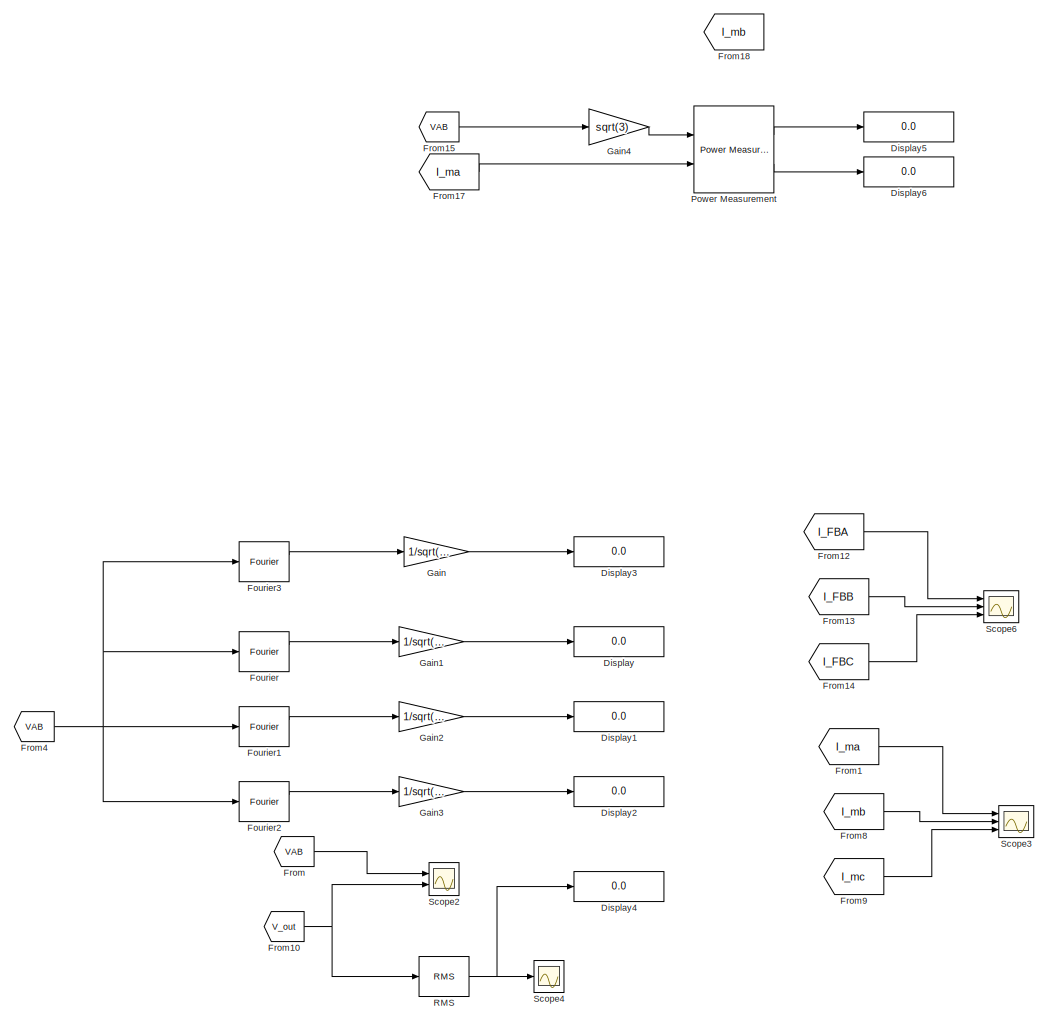
[diagram: root canvas - part 1/4, right side, full height]
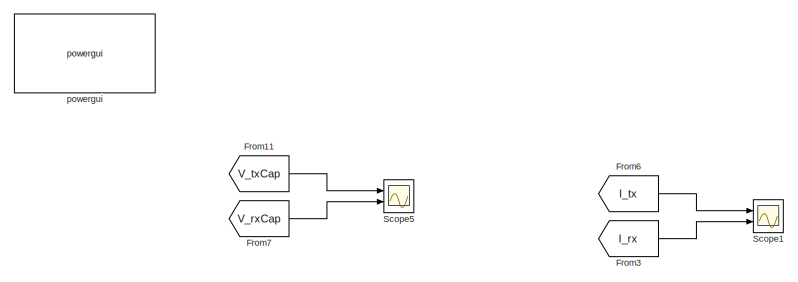
[diagram: root canvas - part 2/4, top center region]
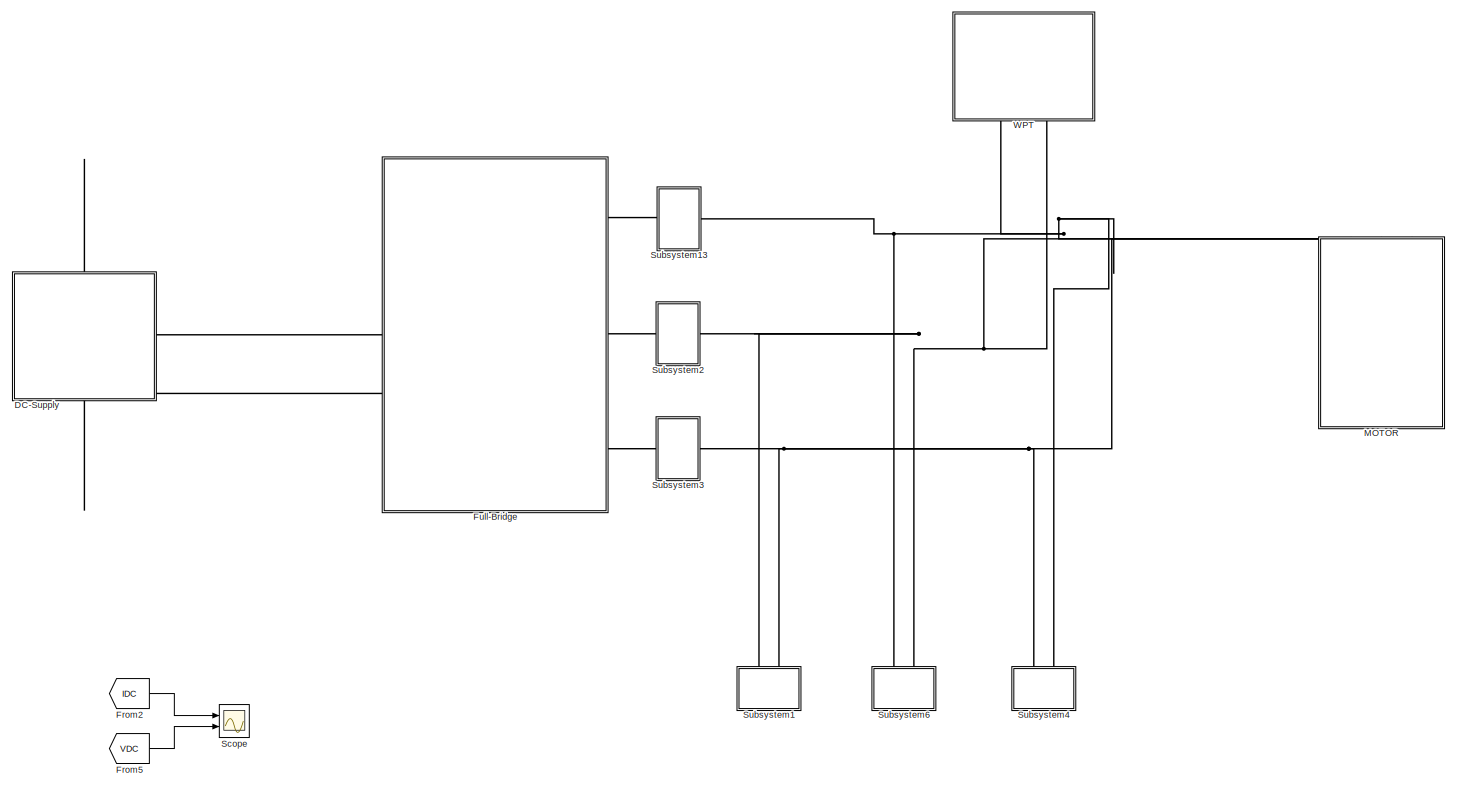
[diagram: root canvas - part 3/4, central region]
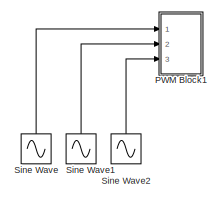
[diagram: root canvas - part 4/4, middle left region]
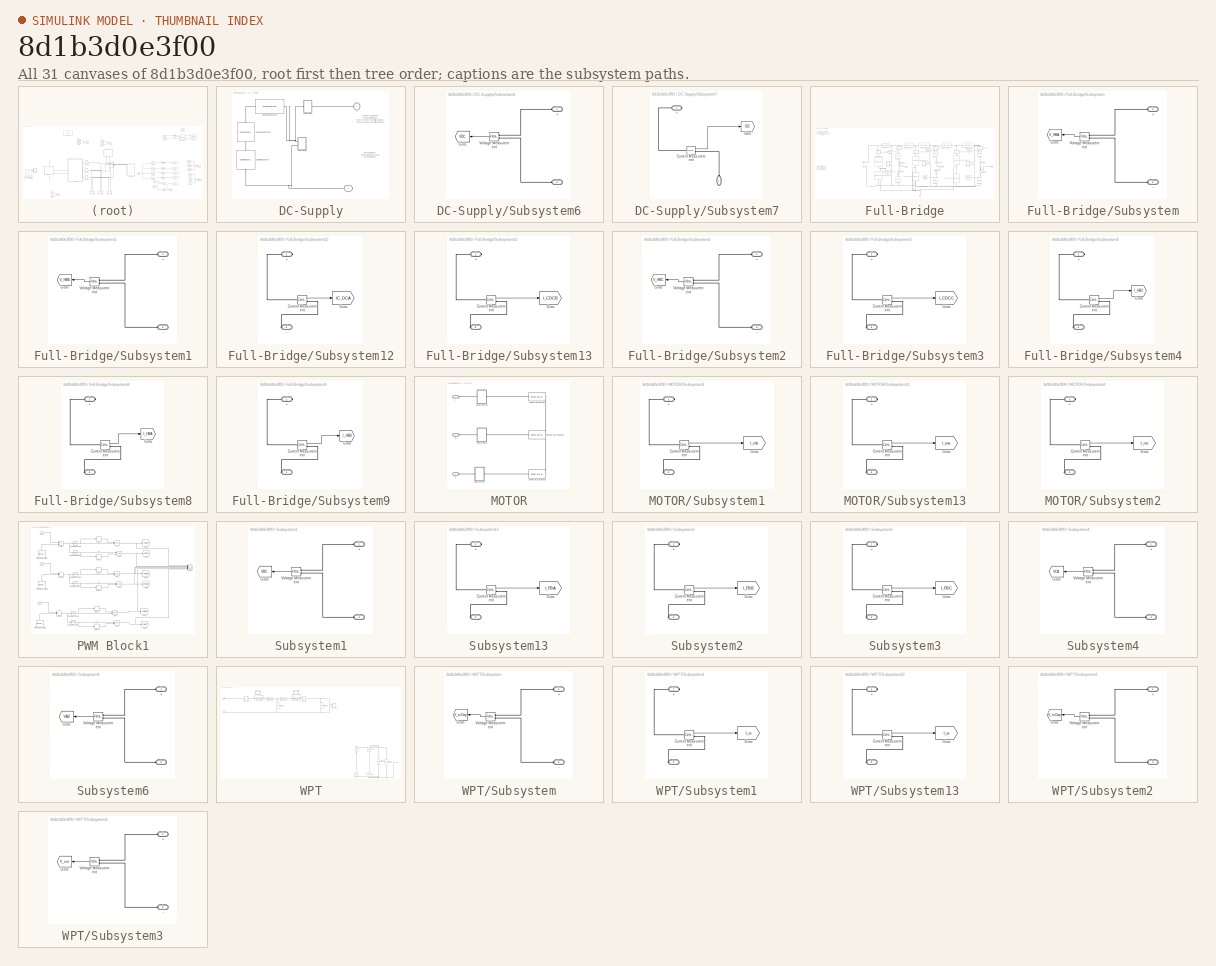
[diagram: thumbnail index - all 31 canvases of the model, root first then tree order]
MODEL slx_8d1b3d0e3f00
KIND model
CONFIG AbsTol = auto
CONFIG EnableMultiTasking = off
CONFIG FixedStep = SampleTime
CONFIG InitFcn = test_param\n\n\n
CONFIG MaxStep = auto
CONFIG MinStep = auto
CONFIG RelTol = 1e-3
CONFIG SampleTimeConstraint = Unconstrained
CONFIG SolverName = FixedStepDiscrete
CONFIG StartTime = 0.0
CONFIG StopTime = Tfinal
BLOCK [SubSystem] DC-Supply
  NameLocation = left
  Ports = [0, 0, 0, 0, 0, 1, 1]
  RequestExecContextInheritance = off
BLOCK [PMIOPort] DC-Supply/+
  Side = Left
BLOCK [PMIOPort] DC-Supply/-
  Port = 2
  Side = Right
BLOCK [Reference] DC-Supply/DC Voltage Source  REF=spsDCVoltageSourceLib/DC Voltage Source
  NameLocation = right
  Ports = [0, 0, 0, 0, 0, 1, 1]
  SourceBlock = spsDCVoltageSourceLib/DC Voltage Source
  SourceProductBaseCode = PS
  SourceType = DC Voltage Source
BLOCK [Reference] DC-Supply/Series RLC Branch1  REF=spsSeriesRLCBranchLib/Series RLC Branch
  NameLocation = top
  Ports = [0, 0, 0, 0, 0, 1, 1]
  SourceBlock = spsSeriesRLCBranchLib/Series RLC Branch
  SourceProductBaseCode = PS
  SourceType = Series RLC Branch
BLOCK [Reference] DC-Supply/Series RLC Branch5  REF=spsSeriesRLCBranchLib/Series RLC Branch
  NameLocation = left
  Ports = [0, 0, 0, 0, 0, 1, 1]
  SourceBlock = spsSeriesRLCBranchLib/Series RLC Branch
  SourceProductBaseCode = PS
  SourceType = Series RLC Branch
BLOCK [SubSystem] DC-Supply/Subsystem6
  Ports = [0, 0, 0, 0, 0, 2]
  RequestExecContextInheritance = off
BLOCK [PMIOPort] DC-Supply/Subsystem6/+
  Side = Left
BLOCK [PMIOPort] DC-Supply/Subsystem6/-
  Port = 2
  Side = Left
BLOCK [Goto] DC-Supply/Subsystem6/Goto
  GotoTag = VDC
  NameLocation = top
  TagVisibility = global
BLOCK [Reference] DC-Supply/Subsystem6/Voltage Measurement  REF=spsVoltageMeasurementLib/Voltage Measurement
  Ports = [0, 1, 0, 0, 0, 2]
  SourceBlock = spsVoltageMeasurementLib/Voltage Measurement
  SourceProductBaseCode = PS
  SourceType = Voltage Measurement
  UserDataPersistent = on
BLOCK [SubSystem] DC-Supply/Subsystem7
  NameLocation = top
  Ports = [0, 0, 0, 0, 0, 1, 1]
  RequestExecContextInheritance = off
BLOCK [PMIOPort] DC-Supply/Subsystem7/+
  Side = Right
BLOCK [PMIOPort] DC-Supply/Subsystem7/-
  NameLocation = left
  Port = 2
  Side = Left
BLOCK [Reference] DC-Supply/Subsystem7/Current Measurement  REF=spsCurrentMeasurementLib/Current Measurement
  Ports = [0, 1, 0, 0, 0, 1, 1]
  SourceBlock = spsCurrentMeasurementLib/Current Measurement
  SourceProductBaseCode = PS
  SourceType = Current Measurement
  UserDataPersistent = on
BLOCK [Goto] DC-Supply/Subsystem7/Goto
  GotoTag = IDC
  TagVisibility = global
BLOCK [Display] Display
  Decimation = 1
  Ports = [1]
BLOCK [Display] Display1
  Decimation = 1
  Ports = [1]
BLOCK [Display] Display2
  Decimation = 1
  Ports = [1]
BLOCK [Display] Display3
  Decimation = 1
  Ports = [1]
BLOCK [Display] Display4
  Decimation = 1
  Ports = [1]
BLOCK [Display] Display5
  Commented = on
  Decimation = 1
  Ports = [1]
BLOCK [Display] Display6
  Commented = on
  Decimation = 1
  Ports = [1]
BLOCK [Reference] Fourier  REF=spsFourierLib/Fourier
  Ports = [1, 2]
  SourceBlock = spsFourierLib/Fourier
  SourceProductBaseCode = PS
  SourceType = Fourier
BLOCK [Reference] Fourier1  REF=spsFourierLib/Fourier
  Ports = [1, 2]
  SourceBlock = spsFourierLib/Fourier
  SourceProductBaseCode = PS
  SourceType = Fourier
BLOCK [Reference] Fourier2  REF=spsFourierLib/Fourier
  Ports = [1, 2]
  SourceBlock = spsFourierLib/Fourier
  SourceProductBaseCode = PS
  SourceType = Fourier
BLOCK [Reference] Fourier3  REF=spsFourierLib/Fourier
  Ports = [1, 2]
  SourceBlock = spsFourierLib/Fourier
  SourceProductBaseCode = PS
  SourceType = Fourier
BLOCK [From] From
  GotoTag = VAB
  NameLocation = top
  TagVisibility = global
BLOCK [From] From1
  GotoTag = I_ma
  TagVisibility = global
BLOCK [From] From10
  GotoTag = V_out
  NameLocation = top
  TagVisibility = global
BLOCK [From] From11
  GotoTag = V_txCap
  TagVisibility = global
BLOCK [From] From12
  GotoTag = I_FBA
  TagVisibility = global
BLOCK [From] From13
  GotoTag = I_FBB
  TagVisibility = global
BLOCK [From] From14
  GotoTag = I_FBC
  TagVisibility = global
BLOCK [From] From15
  Commented = on
  GotoTag = VAB
  NameLocation = top
  TagVisibility = global
BLOCK [From] From17
  Commented = on
  GotoTag = I_ma
  TagVisibility = global
BLOCK [From] From18
  GotoTag = I_mb
  TagVisibility = global
BLOCK [From] From2
  GotoTag = IDC
  TagVisibility = global
BLOCK [From] From3
  GotoTag = I_rx
  TagVisibility = global
BLOCK [From] From4
  GotoTag = VAB
  NameLocation = top
  TagVisibility = global
BLOCK [From] From5
  GotoTag = VDC
  NameLocation = top
  TagVisibility = global
BLOCK [From] From6
  GotoTag = I_tx
  TagVisibility = global
BLOCK [From] From7
  GotoTag = V_rxCap
  TagVisibility = global
BLOCK [From] From8
  GotoTag = I_mb
  TagVisibility = global
BLOCK [From] From9
  GotoTag = I_mc
  TagVisibility = global
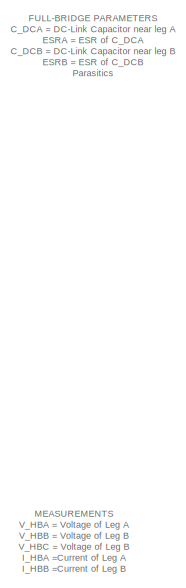
[diagram: Full-Bridge - part 1/4, top left region]
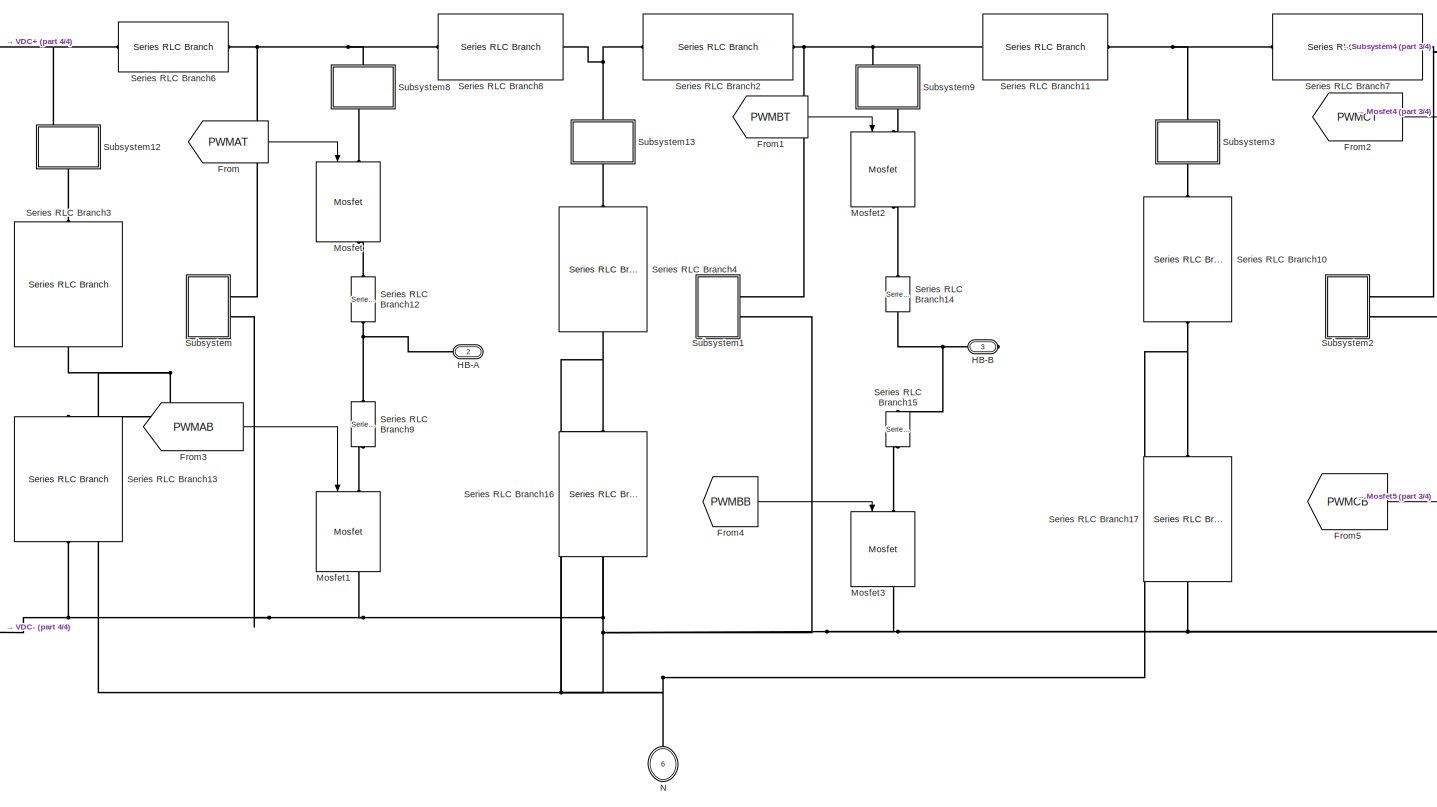
[diagram: Full-Bridge - part 2/4, center side, full height]
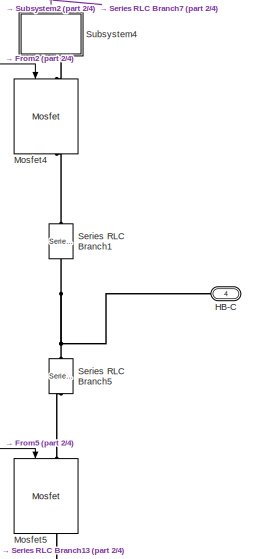
[diagram: Full-Bridge - part 3/4, middle right region]
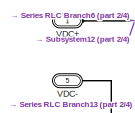
[diagram: Full-Bridge - part 4/4, middle left region]
BLOCK [SubSystem] Full-Bridge
  NameLocation = left
  PortSchema = {"entries":[{"content":{"sides":[{"content":{"connectorIds":[]},"type":"ConnectorPlacement.EquallySpacedRectSide","uuid":"92c2640b-bb56-47f8-9c41-2323b38839f8"},{"content":{"connectorIds":["RConn1","RConn2","RConn3"],"side":"RIGHT"},"type":"ConnectorPlacement.EquallySpacedRectSide","uuid":"0b5c90a1-e2e1-4478-84c9-834496a6568e"},{"content":{"connectorIds":["LConn1"],"side":"TOP"},"type":"ConnectorP...<+568ch>
  Ports = [0, 0, 0, 0, 0, 1, 5]
  RequestExecContextInheritance = off
BLOCK [From] Full-Bridge/From
  GotoTag = PWMAT
  TagVisibility = global
BLOCK [From] Full-Bridge/From1
  GotoTag = PWMBT
  TagVisibility = global
BLOCK [From] Full-Bridge/From2
  GotoTag = PWMCT
  TagVisibility = global
BLOCK [From] Full-Bridge/From3
  GotoTag = PWMAB
  TagVisibility = global
BLOCK [From] Full-Bridge/From4
  GotoTag = PWMBB
  TagVisibility = global
BLOCK [From] Full-Bridge/From5
  GotoTag = PWMCB
  TagVisibility = global
BLOCK [PMIOPort] Full-Bridge/HB-A
  Port = 2
  Side = Right
BLOCK [PMIOPort] Full-Bridge/HB-B
  Port = 3
  Side = Right
BLOCK [PMIOPort] Full-Bridge/HB-C
  Port = 4
  Side = Right
BLOCK [Reference] Full-Bridge/Mosfet  REF=spsMosfetLib/Mosfet
  NameLocation = left
  Ports = [1, 1, 0, 0, 0, 1, 1]
  SourceBlock = spsMosfetLib/Mosfet
  SourceProductBaseCode = PS
  SourceType = Mosfet
BLOCK [Reference] Full-Bridge/Mosfet1  REF=spsMosfetLib/Mosfet
  NameLocation = left
  Ports = [1, 1, 0, 0, 0, 1, 1]
  SourceBlock = spsMosfetLib/Mosfet
  SourceProductBaseCode = PS
  SourceType = Mosfet
BLOCK [Reference] Full-Bridge/Mosfet2  REF=spsMosfetLib/Mosfet
  NameLocation = left
  Ports = [1, 1, 0, 0, 0, 1, 1]
  SourceBlock = spsMosfetLib/Mosfet
  SourceProductBaseCode = PS
  SourceType = Mosfet
BLOCK [Reference] Full-Bridge/Mosfet3  REF=spsMosfetLib/Mosfet
  NameLocation = left
  Ports = [1, 1, 0, 0, 0, 1, 1]
  SourceBlock = spsMosfetLib/Mosfet
  SourceProductBaseCode = PS
  SourceType = Mosfet
BLOCK [Reference] Full-Bridge/Mosfet4  REF=spsMosfetLib/Mosfet
  NameLocation = left
  Ports = [1, 1, 0, 0, 0, 1, 1]
  SourceBlock = spsMosfetLib/Mosfet
  SourceProductBaseCode = PS
  SourceType = Mosfet
BLOCK [Reference] Full-Bridge/Mosfet5  REF=spsMosfetLib/Mosfet
  NameLocation = left
  Ports = [1, 1, 0, 0, 0, 1, 1]
  SourceBlock = spsMosfetLib/Mosfet
  SourceProductBaseCode = PS
  SourceType = Mosfet
BLOCK [PMIOPort] Full-Bridge/N
  NameLocation = left
  Port = 6
  Side = Right
BLOCK [Reference] Full-Bridge/Series RLC Branch1  REF=spsSeriesRLCBranchLib/Series RLC Branch
  NameLocation = right
  Ports = [0, 0, 0, 0, 0, 1, 1]
  SourceBlock = spsSeriesRLCBranchLib/Series RLC Branch
  SourceProductBaseCode = PS
  SourceType = Series RLC Branch
BLOCK [Reference] Full-Bridge/Series RLC Branch10  REF=spsSeriesRLCBranchLib/Series RLC Branch
  NameLocation = left
  Ports = [0, 0, 0, 0, 0, 1, 1]
  SourceBlock = spsSeriesRLCBranchLib/Series RLC Branch
  SourceProductBaseCode = PS
  SourceType = Series RLC Branch
BLOCK [Reference] Full-Bridge/Series RLC Branch11  REF=spsSeriesRLCBranchLib/Series RLC Branch
  NameLocation = top
  Ports = [0, 0, 0, 0, 0, 1, 1]
  SourceBlock = spsSeriesRLCBranchLib/Series RLC Branch
  SourceProductBaseCode = PS
  SourceType = Series RLC Branch
BLOCK [Reference] Full-Bridge/Series RLC Branch12  REF=spsSeriesRLCBranchLib/Series RLC Branch
  NameLocation = right
  Ports = [0, 0, 0, 0, 0, 1, 1]
  SourceBlock = spsSeriesRLCBranchLib/Series RLC Branch
  SourceProductBaseCode = PS
  SourceType = Series RLC Branch
BLOCK [Reference] Full-Bridge/Series RLC Branch13  REF=spsSeriesRLCBranchLib/Series RLC Branch
  NameLocation = left
  Ports = [0, 0, 0, 0, 0, 1, 1]
  SourceBlock = spsSeriesRLCBranchLib/Series RLC Branch
  SourceProductBaseCode = PS
  SourceType = Series RLC Branch
BLOCK [Reference] Full-Bridge/Series RLC Branch14  REF=spsSeriesRLCBranchLib/Series RLC Branch
  NameLocation = right
  Ports = [0, 0, 0, 0, 0, 1, 1]
  SourceBlock = spsSeriesRLCBranchLib/Series RLC Branch
  SourceProductBaseCode = PS
  SourceType = Series RLC Branch
BLOCK [Reference] Full-Bridge/Series RLC Branch15  REF=spsSeriesRLCBranchLib/Series RLC Branch
  NameLocation = right
  Ports = [0, 0, 0, 0, 0, 1, 1]
  SourceBlock = spsSeriesRLCBranchLib/Series RLC Branch
  SourceProductBaseCode = PS
  SourceType = Series RLC Branch
BLOCK [Reference] Full-Bridge/Series RLC Branch16  REF=spsSeriesRLCBranchLib/Series RLC Branch
  NameLocation = left
  Ports = [0, 0, 0, 0, 0, 1, 1]
  SourceBlock = spsSeriesRLCBranchLib/Series RLC Branch
  SourceProductBaseCode = PS
  SourceType = Series RLC Branch
BLOCK [Reference] Full-Bridge/Series RLC Branch17  REF=spsSeriesRLCBranchLib/Series RLC Branch
  NameLocation = left
  Ports = [0, 0, 0, 0, 0, 1, 1]
  SourceBlock = spsSeriesRLCBranchLib/Series RLC Branch
  SourceProductBaseCode = PS
  SourceType = Series RLC Branch
BLOCK [Reference] Full-Bridge/Series RLC Branch2  REF=spsSeriesRLCBranchLib/Series RLC Branch
  NameLocation = top
  Ports = [0, 0, 0, 0, 0, 1, 1]
  SourceBlock = spsSeriesRLCBranchLib/Series RLC Branch
  SourceProductBaseCode = PS
  SourceType = Series RLC Branch
BLOCK [Reference] Full-Bridge/Series RLC Branch3  REF=spsSeriesRLCBranchLib/Series RLC Branch
  NameLocation = left
  Ports = [0, 0, 0, 0, 0, 1, 1]
  SourceBlock = spsSeriesRLCBranchLib/Series RLC Branch
  SourceProductBaseCode = PS
  SourceType = Series RLC Branch
BLOCK [Reference] Full-Bridge/Series RLC Branch4  REF=spsSeriesRLCBranchLib/Series RLC Branch
  NameLocation = left
  Ports = [0, 0, 0, 0, 0, 1, 1]
  SourceBlock = spsSeriesRLCBranchLib/Series RLC Branch
  SourceProductBaseCode = PS
  SourceType = Series RLC Branch
BLOCK [Reference] Full-Bridge/Series RLC Branch5  REF=spsSeriesRLCBranchLib/Series RLC Branch
  NameLocation = right
  Ports = [0, 0, 0, 0, 0, 1, 1]
  SourceBlock = spsSeriesRLCBranchLib/Series RLC Branch
  SourceProductBaseCode = PS
  SourceType = Series RLC Branch
BLOCK [Reference] Full-Bridge/Series RLC Branch6  REF=spsSeriesRLCBranchLib/Series RLC Branch
  NameLocation = top
  Ports = [0, 0, 0, 0, 0, 1, 1]
  SourceBlock = spsSeriesRLCBranchLib/Series RLC Branch
  SourceProductBaseCode = PS
  SourceType = Series RLC Branch
BLOCK [Reference] Full-Bridge/Series RLC Branch7  REF=spsSeriesRLCBranchLib/Series RLC Branch
  NameLocation = top
  Ports = [0, 0, 0, 0, 0, 1, 1]
  SourceBlock = spsSeriesRLCBranchLib/Series RLC Branch
  SourceProductBaseCode = PS
  SourceType = Series RLC Branch
BLOCK [Reference] Full-Bridge/Series RLC Branch8  REF=spsSeriesRLCBranchLib/Series RLC Branch
  NameLocation = top
  Ports = [0, 0, 0, 0, 0, 1, 1]
  SourceBlock = spsSeriesRLCBranchLib/Series RLC Branch
  SourceProductBaseCode = PS
  SourceType = Series RLC Branch
BLOCK [Reference] Full-Bridge/Series RLC Branch9  REF=spsSeriesRLCBranchLib/Series RLC Branch
  NameLocation = right
  Ports = [0, 0, 0, 0, 0, 1, 1]
  SourceBlock = spsSeriesRLCBranchLib/Series RLC Branch
  SourceProductBaseCode = PS
  SourceType = Series RLC Branch
BLOCK [SubSystem] Full-Bridge/Subsystem
  Ports = [0, 0, 0, 0, 0, 2]
  RequestExecContextInheritance = off
BLOCK [PMIOPort] Full-Bridge/Subsystem/+
  Side = Left
BLOCK [PMIOPort] Full-Bridge/Subsystem/-
  Port = 2
  Side = Left
BLOCK [Goto] Full-Bridge/Subsystem/Goto
  GotoTag = V_HBA
  NameLocation = top
  TagVisibility = global
BLOCK [Reference] Full-Bridge/Subsystem/Voltage Measurement  REF=spsVoltageMeasurementLib/Voltage Measurement
  Ports = [0, 1, 0, 0, 0, 2]
  SourceBlock = spsVoltageMeasurementLib/Voltage Measurement
  SourceProductBaseCode = PS
  SourceType = Voltage Measurement
  UserDataPersistent = on
BLOCK [SubSystem] Full-Bridge/Subsystem1
  Ports = [0, 0, 0, 0, 0, 2]
  RequestExecContextInheritance = off
BLOCK [PMIOPort] Full-Bridge/Subsystem1/+
  Side = Left
BLOCK [PMIOPort] Full-Bridge/Subsystem1/-
  Port = 2
  Side = Left
BLOCK [Goto] Full-Bridge/Subsystem1/Goto
  GotoTag = V_HBB
  NameLocation = top
  TagVisibility = global
BLOCK [Reference] Full-Bridge/Subsystem1/Voltage Measurement  REF=spsVoltageMeasurementLib/Voltage Measurement
  Ports = [0, 1, 0, 0, 0, 2]
  SourceBlock = spsVoltageMeasurementLib/Voltage Measurement
  SourceProductBaseCode = PS
  SourceType = Voltage Measurement
  UserDataPersistent = on
BLOCK [SubSystem] Full-Bridge/Subsystem12
  NameLocation = right
  Ports = [0, 0, 0, 0, 0, 1, 1]
  RequestExecContextInheritance = off
BLOCK [PMIOPort] Full-Bridge/Subsystem12/+
  Side = Right
BLOCK [PMIOPort] Full-Bridge/Subsystem12/-
  Port = 2
  Side = Left
BLOCK [Reference] Full-Bridge/Subsystem12/Current Measurement  REF=spsCurrentMeasurementLib/Current Measurement
  Ports = [0, 1, 0, 0, 0, 1, 1]
  SourceBlock = spsCurrentMeasurementLib/Current Measurement
  SourceProductBaseCode = PS
  SourceType = Current Measurement
  UserDataPersistent = on
BLOCK [Goto] Full-Bridge/Subsystem12/Goto
  GotoTag = IC_DCA
  TagVisibility = global
BLOCK [SubSystem] Full-Bridge/Subsystem13
  NameLocation = right
  Ports = [0, 0, 0, 0, 0, 1, 1]
  RequestExecContextInheritance = off
BLOCK [PMIOPort] Full-Bridge/Subsystem13/+
  Side = Right
BLOCK [PMIOPort] Full-Bridge/Subsystem13/-
  Port = 2
  Side = Left
BLOCK [Reference] Full-Bridge/Subsystem13/Current Measurement  REF=spsCurrentMeasurementLib/Current Measurement
  Ports = [0, 1, 0, 0, 0, 1, 1]
  SourceBlock = spsCurrentMeasurementLib/Current Measurement
  SourceProductBaseCode = PS
  SourceType = Current Measurement
  UserDataPersistent = on
BLOCK [Goto] Full-Bridge/Subsystem13/Goto
  GotoTag = I_CDCB
  TagVisibility = global
BLOCK [SubSystem] Full-Bridge/Subsystem2
  Ports = [0, 0, 0, 0, 0, 2]
  RequestExecContextInheritance = off
BLOCK [PMIOPort] Full-Bridge/Subsystem2/+
  Side = Left
BLOCK [PMIOPort] Full-Bridge/Subsystem2/-
  Port = 2
  Side = Left
BLOCK [Goto] Full-Bridge/Subsystem2/Goto
  GotoTag = V_HBC
  NameLocation = top
  TagVisibility = global
BLOCK [Reference] Full-Bridge/Subsystem2/Voltage Measurement  REF=spsVoltageMeasurementLib/Voltage Measurement
  Ports = [0, 1, 0, 0, 0, 2]
  SourceBlock = spsVoltageMeasurementLib/Voltage Measurement
  SourceProductBaseCode = PS
  SourceType = Voltage Measurement
  UserDataPersistent = on
BLOCK [SubSystem] Full-Bridge/Subsystem3
  NameLocation = right
  Ports = [0, 0, 0, 0, 0, 1, 1]
  RequestExecContextInheritance = off
BLOCK [PMIOPort] Full-Bridge/Subsystem3/+
  Side = Right
BLOCK [PMIOPort] Full-Bridge/Subsystem3/-
  Port = 2
  Side = Left
BLOCK [Reference] Full-Bridge/Subsystem3/Current Measurement  REF=spsCurrentMeasurementLib/Current Measurement
  Ports = [0, 1, 0, 0, 0, 1, 1]
  SourceBlock = spsCurrentMeasurementLib/Current Measurement
  SourceProductBaseCode = PS
  SourceType = Current Measurement
  UserDataPersistent = on
BLOCK [Goto] Full-Bridge/Subsystem3/Goto
  GotoTag = I_CDCC
  TagVisibility = global
BLOCK [SubSystem] Full-Bridge/Subsystem4
  NameLocation = right
  Ports = [0, 0, 0, 0, 0, 1, 1]
  RequestExecContextInheritance = off
BLOCK [PMIOPort] Full-Bridge/Subsystem4/+
  Side = Right
BLOCK [PMIOPort] Full-Bridge/Subsystem4/-
  Port = 2
  Side = Left
BLOCK [Reference] Full-Bridge/Subsystem4/Current Measurement  REF=spsCurrentMeasurementLib/Current Measurement
  Ports = [0, 1, 0, 0, 0, 1, 1]
  SourceBlock = spsCurrentMeasurementLib/Current Measurement
  SourceProductBaseCode = PS
  SourceType = Current Measurement
  UserDataPersistent = on
BLOCK [Goto] Full-Bridge/Subsystem4/Goto
  GotoTag = I_HBC
  TagVisibility = global
BLOCK [SubSystem] Full-Bridge/Subsystem8
  NameLocation = right
  Ports = [0, 0, 0, 0, 0, 1, 1]
  RequestExecContextInheritance = off
BLOCK [PMIOPort] Full-Bridge/Subsystem8/+
  Side = Right
BLOCK [PMIOPort] Full-Bridge/Subsystem8/-
  Port = 2
  Side = Left
BLOCK [Reference] Full-Bridge/Subsystem8/Current Measurement  REF=spsCurrentMeasurementLib/Current Measurement
  Ports = [0, 1, 0, 0, 0, 1, 1]
  SourceBlock = spsCurrentMeasurementLib/Current Measurement
  SourceProductBaseCode = PS
  SourceType = Current Measurement
  UserDataPersistent = on
BLOCK [Goto] Full-Bridge/Subsystem8/Goto
  GotoTag = I_HBA
  TagVisibility = global
BLOCK [SubSystem] Full-Bridge/Subsystem9
  NameLocation = right
  Ports = [0, 0, 0, 0, 0, 1, 1]
  RequestExecContextInheritance = off
BLOCK [PMIOPort] Full-Bridge/Subsystem9/+
  Side = Right
BLOCK [PMIOPort] Full-Bridge/Subsystem9/-
  Port = 2
  Side = Left
BLOCK [Reference] Full-Bridge/Subsystem9/Current Measurement  REF=spsCurrentMeasurementLib/Current Measurement
  Ports = [0, 1, 0, 0, 0, 1, 1]
  SourceBlock = spsCurrentMeasurementLib/Current Measurement
  SourceProductBaseCode = PS
  SourceType = Current Measurement
  UserDataPersistent = on
BLOCK [Goto] Full-Bridge/Subsystem9/Goto
  GotoTag = I_HBB
  TagVisibility = global
BLOCK [PMIOPort] Full-Bridge/VDC+
  Side = Left
BLOCK [PMIOPort] Full-Bridge/VDC-
  Port = 5
  Side = Right
BLOCK [Gain] Gain
  Gain = 1/sqrt(2)
BLOCK [Gain] Gain1
  Gain = 1/sqrt(2)
BLOCK [Gain] Gain2
  Gain = 1/sqrt(2)
BLOCK [Gain] Gain3
  Gain = 1/sqrt(2)
BLOCK [Gain] Gain4
  Commented = on
  Gain = sqrt(3)
BLOCK [SubSystem] MOTOR
  PortSchema = {"entries":[{"content":{"sides":[{"content":{"connectorIds":[]},"type":"ConnectorPlacement.EquallySpacedRectSide","uuid":"27af0988-5d70-46f2-9f63-66e4679735d7"},{"content":{"connectorIds":[],"side":"RIGHT"},"type":"ConnectorPlacement.EquallySpacedRectSide","uuid":"9d673fb6-38db-4110-ad66-771dcf318fba"},{"content":{"connectorIds":["LConn1","LConn2","LConn3"],"side":"TOP"},"type":"ConnectorPlacement...<+399ch>
  Ports = [0, 0, 0, 0, 0, 3]
  RequestExecContextInheritance = off
BLOCK [PMIOPort] MOTOR/A
  Side = Left
BLOCK [PMIOPort] MOTOR/B
  Port = 2
  Side = Left
BLOCK [PMIOPort] MOTOR/C
  Port = 3
  Side = Left
BLOCK [Reference] MOTOR/Series RLC Branch  REF=spsSeriesRLCBranchLib/Series RLC Branch
  Ports = [0, 0, 0, 0, 0, 1, 1]
  SourceBlock = spsSeriesRLCBranchLib/Series RLC Branch
  SourceProductBaseCode = PS
  SourceType = Series RLC Branch
BLOCK [Reference] MOTOR/Series RLC Branch1  REF=spsSeriesRLCBranchLib/Series RLC Branch
  Ports = [0, 0, 0, 0, 0, 1, 1]
  SourceBlock = spsSeriesRLCBranchLib/Series RLC Branch
  SourceProductBaseCode = PS
  SourceType = Series RLC Branch
BLOCK [Reference] MOTOR/Series RLC Branch2  REF=spsSeriesRLCBranchLib/Series RLC Branch
  Ports = [0, 0, 0, 0, 0, 1, 1]
  SourceBlock = spsSeriesRLCBranchLib/Series RLC Branch
  SourceProductBaseCode = PS
  SourceType = Series RLC Branch
BLOCK [SubSystem] MOTOR/Subsystem1
  NameLocation = top
  Ports = [0, 0, 0, 0, 0, 1, 1]
  RequestExecContextInheritance = off
BLOCK [PMIOPort] MOTOR/Subsystem1/+
  Side = Right
BLOCK [PMIOPort] MOTOR/Subsystem1/-
  Port = 2
  Side = Left
BLOCK [Reference] MOTOR/Subsystem1/Current Measurement  REF=spsCurrentMeasurementLib/Current Measurement
  Ports = [0, 1, 0, 0, 0, 1, 1]
  SourceBlock = spsCurrentMeasurementLib/Current Measurement
  SourceProductBaseCode = PS
  SourceType = Current Measurement
  UserDataPersistent = on
BLOCK [Goto] MOTOR/Subsystem1/Goto
  GotoTag = I_mb
  TagVisibility = global
BLOCK [SubSystem] MOTOR/Subsystem13
  NameLocation = top
  Ports = [0, 0, 0, 0, 0, 1, 1]
  RequestExecContextInheritance = off
BLOCK [PMIOPort] MOTOR/Subsystem13/+
  Side = Right
BLOCK [PMIOPort] MOTOR/Subsystem13/-
  Port = 2
  Side = Left
BLOCK [Reference] MOTOR/Subsystem13/Current Measurement  REF=spsCurrentMeasurementLib/Current Measurement
  Ports = [0, 1, 0, 0, 0, 1, 1]
  SourceBlock = spsCurrentMeasurementLib/Current Measurement
  SourceProductBaseCode = PS
  SourceType = Current Measurement
  UserDataPersistent = on
BLOCK [Goto] MOTOR/Subsystem13/Goto
  GotoTag = I_ma
  TagVisibility = global
BLOCK [SubSystem] MOTOR/Subsystem2
  NameLocation = top
  Ports = [0, 0, 0, 0, 0, 1, 1]
  RequestExecContextInheritance = off
BLOCK [PMIOPort] MOTOR/Subsystem2/+
  Side = Right
BLOCK [PMIOPort] MOTOR/Subsystem2/-
  Port = 2
  Side = Left
BLOCK [Reference] MOTOR/Subsystem2/Current Measurement  REF=spsCurrentMeasurementLib/Current Measurement
  Ports = [0, 1, 0, 0, 0, 1, 1]
  SourceBlock = spsCurrentMeasurementLib/Current Measurement
  SourceProductBaseCode = PS
  SourceType = Current Measurement
  UserDataPersistent = on
BLOCK [Goto] MOTOR/Subsystem2/Goto
  GotoTag = I_mc
  TagVisibility = global
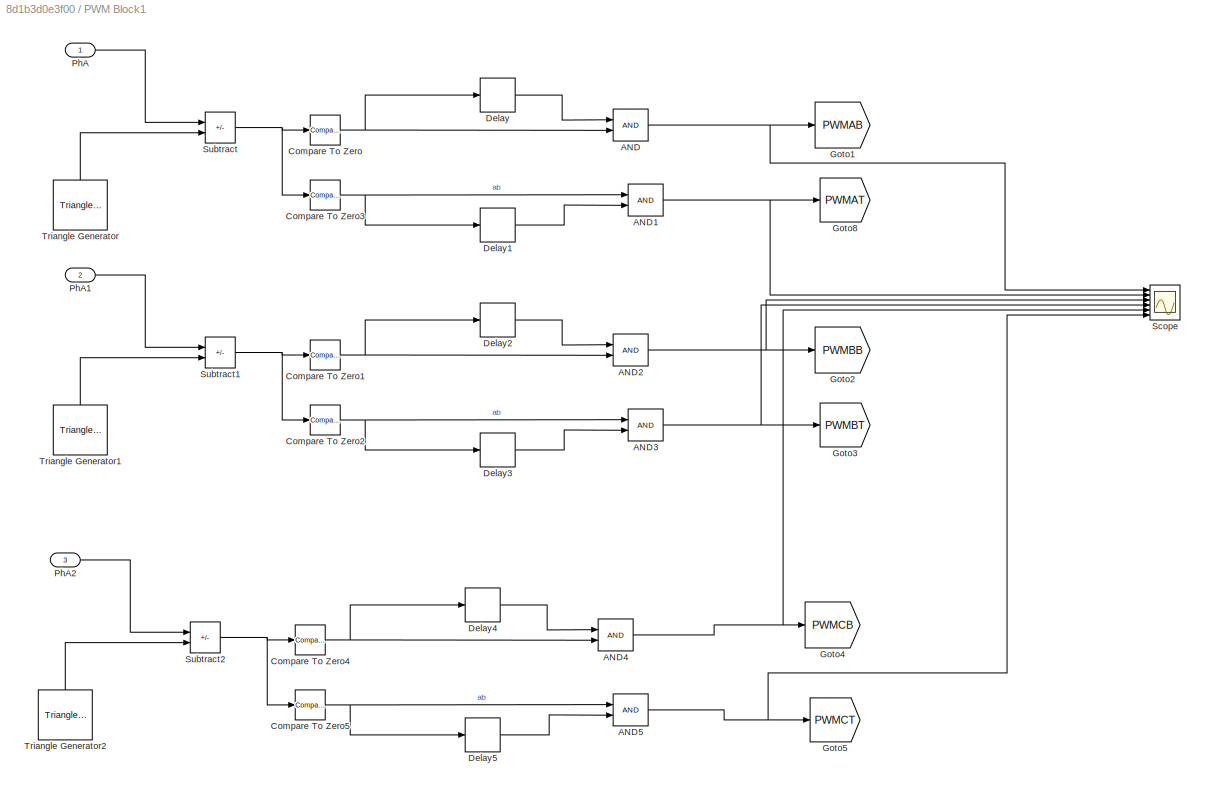
BLOCK [SubSystem] PWM Block1
  Ports = [3]
  RequestExecContextInheritance = off
BLOCK [Logic] PWM Block1/AND
  AllPortsSameDT = off
  IconShape = distinctive
  OutDataTypeStr = boolean
  Ports = [2, 1]
BLOCK [Logic] PWM Block1/AND1
  AllPortsSameDT = off
  IconShape = distinctive
  OutDataTypeStr = boolean
  Ports = [2, 1]
BLOCK [Logic] PWM Block1/AND2
  AllPortsSameDT = off
  IconShape = distinctive
  OutDataTypeStr = boolean
  Ports = [2, 1]
BLOCK [Logic] PWM Block1/AND3
  AllPortsSameDT = off
  IconShape = distinctive
  OutDataTypeStr = boolean
  Ports = [2, 1]
BLOCK [Logic] PWM Block1/AND4
  AllPortsSameDT = off
  IconShape = distinctive
  OutDataTypeStr = boolean
  Ports = [2, 1]
BLOCK [Logic] PWM Block1/AND5
  AllPortsSameDT = off
  IconShape = distinctive
  OutDataTypeStr = boolean
  Ports = [2, 1]
BLOCK [Reference] PWM Block1/Compare To Zero  REF=simulink/Logic and Bit
Operations/Compare
To Zero
  Ports = [1, 1]
  SourceBlock = simulink/Logic and Bit\nOperations/Compare\nTo Zero
  SourceProductBaseCode = SL
  SourceType = Compare To Zero
BLOCK [Reference] PWM Block1/Compare To Zero1  REF=simulink/Logic and Bit
Operations/Compare
To Zero
  Ports = [1, 1]
  SourceBlock = simulink/Logic and Bit\nOperations/Compare\nTo Zero
  SourceProductBaseCode = SL
  SourceType = Compare To Zero
BLOCK [Reference] PWM Block1/Compare To Zero2  REF=simulink/Logic and Bit
Operations/Compare
To Zero
  Ports = [1, 1]
  SourceBlock = simulink/Logic and Bit\nOperations/Compare\nTo Zero
  SourceProductBaseCode = SL
  SourceType = Compare To Zero
BLOCK [Reference] PWM Block1/Compare To Zero3  REF=simulink/Logic and Bit
Operations/Compare
To Zero
  Ports = [1, 1]
  SourceBlock = simulink/Logic and Bit\nOperations/Compare\nTo Zero
  SourceProductBaseCode = SL
  SourceType = Compare To Zero
BLOCK [Reference] PWM Block1/Compare To Zero4  REF=simulink/Logic and Bit
Operations/Compare
To Zero
  Ports = [1, 1]
  SourceBlock = simulink/Logic and Bit\nOperations/Compare\nTo Zero
  SourceProductBaseCode = SL
  SourceType = Compare To Zero
BLOCK [Reference] PWM Block1/Compare To Zero5  REF=simulink/Logic and Bit
Operations/Compare
To Zero
  Ports = [1, 1]
  SourceBlock = simulink/Logic and Bit\nOperations/Compare\nTo Zero
  SourceProductBaseCode = SL
  SourceType = Compare To Zero
BLOCK [Delay] PWM Block1/Delay
  InputPortMap = u0
  Ports = [1, 1]
BLOCK [Delay] PWM Block1/Delay1
  InputPortMap = u0
  Ports = [1, 1]
BLOCK [Delay] PWM Block1/Delay2
  InputPortMap = u0
  Ports = [1, 1]
BLOCK [Delay] PWM Block1/Delay3
  InputPortMap = u0
  Ports = [1, 1]
BLOCK [Delay] PWM Block1/Delay4
  InputPortMap = u0
  Ports = [1, 1]
BLOCK [Delay] PWM Block1/Delay5
  InputPortMap = u0
  Ports = [1, 1]
BLOCK [Goto] PWM Block1/Goto1
  GotoTag = PWMAB
  TagVisibility = global
BLOCK [Goto] PWM Block1/Goto2
  GotoTag = PWMBB
  TagVisibility = global
BLOCK [Goto] PWM Block1/Goto3
  GotoTag = PWMBT
  TagVisibility = global
BLOCK [Goto] PWM Block1/Goto4
  GotoTag = PWMCB
  TagVisibility = global
BLOCK [Goto] PWM Block1/Goto5
  GotoTag = PWMCT
  TagVisibility = global
BLOCK [Goto] PWM Block1/Goto8
  GotoTag = PWMAT
  TagVisibility = global
BLOCK [Inport] PWM Block1/PhA
BLOCK [Inport] PWM Block1/PhA1
  Port = 2
BLOCK [Inport] PWM Block1/PhA2
  Port = 3
BLOCK [Scope] PWM Block1/Scope
  Floating = off
  NumInputPorts = 6
  Ports = [6]
  ScopeSpecificationString = Simulink.scopes.TimeScopeBlockCfg('CurrentConfiguration', extmgr.ConfigurationSet(extmgr.Configuration('Core','General UI',true),extmgr.Configuration('Core','Source UI',true),extmgr.Configuration('Sources','WiredSimulink',true,'DataLoggingVariableName','ScopeData2'),extmgr.Configuration('Visuals','Time Domain',true,'SerializedDisplays',{struct('MinYLimReal','-0.00475','MaxYLimReal','1.08313','YLab...<+4806ch>
BLOCK [Sum] PWM Block1/Subtract
  IconShape = rectangular
  Inputs = +-
  Ports = [2, 1]
BLOCK [Sum] PWM Block1/Subtract1
  IconShape = rectangular
  Inputs = +-
  Ports = [2, 1]
BLOCK [Sum] PWM Block1/Subtract2
  IconShape = rectangular
  Inputs = +-
  Ports = [2, 1]
BLOCK [Reference] PWM Block1/Triangle Generator  REF=spsTriangleGeneratorLib/Triangle
Generator
  NameLocation = right
  Ports = [0, 1]
  SourceBlock = spsTriangleGeneratorLib/Triangle\nGenerator
  SourceProductBaseCode = PS
  SourceType = Triangle Generator
BLOCK [Reference] PWM Block1/Triangle Generator1  REF=spsTriangleGeneratorLib/Triangle
Generator
  NameLocation = right
  Ports = [0, 1]
  SourceBlock = spsTriangleGeneratorLib/Triangle\nGenerator
  SourceProductBaseCode = PS
  SourceType = Triangle Generator
BLOCK [Reference] PWM Block1/Triangle Generator2  REF=spsTriangleGeneratorLib/Triangle
Generator
  NameLocation = right
  Ports = [0, 1]
  SourceBlock = spsTriangleGeneratorLib/Triangle\nGenerator
  SourceProductBaseCode = PS
  SourceType = Triangle Generator
BLOCK [Reference] Power Measurement  REF=eePowerMeasurement/Power
Measurement
  Commented = on
  Ports = [2, 2]
  SourceBlock = eePowerMeasurement/Power\nMeasurement
  SourceProductBaseCode = PS
  SourceType = Power Measurement
BLOCK [Reference] RMS  REF=spsRMSLib/RMS
  Ports = [1, 1]
  SourceBlock = spsRMSLib/RMS
  SourceProductBaseCode = PS
  SourceType = RMS
BLOCK [Scope] Scope
  Floating = off
  NumInputPorts = 2
  Ports = [2]
  ScopeSpecificationString = Simulink.scopes.TimeScopeBlockCfg('CurrentConfiguration', extmgr.ConfigurationSet(extmgr.Configuration('Core','General UI',true),extmgr.Configuration('Core','Source UI',true),extmgr.Configuration('Sources','WiredSimulink',true,'DataLoggingVariableName','ScopeData1'),extmgr.Configuration('Visuals','Time Domain',true,'SerializedDisplays',{struct('MinYLimReal','-4.62241','MaxYLimReal','22.76795','YLa...<+1423ch>
BLOCK [Scope] Scope1
  Floating = off
  NumInputPorts = 2
  Ports = [2]
  ScopeSpecificationString = Simulink.scopes.TimeScopeBlockCfg('CurrentConfiguration', extmgr.ConfigurationSet(extmgr.Configuration('Core','General UI',true),extmgr.Configuration('Core','Source UI',true),extmgr.Configuration('Sources','WiredSimulink',true,'DataLoggingVariableName','ScopeData1'),extmgr.Configuration('Visuals','Time Domain',true,'SerializedDisplays',{struct('MinYLimReal','-1.58555','MaxYLimReal','2.11532','YLab...<+2111ch>
BLOCK [Scope] Scope2
  Floating = off
  NumInputPorts = 2
  Ports = [2]
  ScopeSpecificationString = Simulink.scopes.TimeScopeBlockCfg('CurrentConfiguration', extmgr.ConfigurationSet(extmgr.Configuration('Core','General UI',true),extmgr.Configuration('Core','Source UI',true),extmgr.Configuration('Sources','WiredSimulink',true,'DataLoggingVariableName','ScopeData1','DataLogging',true),extmgr.Configuration('Visuals','Time Domain',true,'SerializedDisplays',{struct('MinYLimReal','-251.37371','MaxYLim...<+2141ch>
BLOCK [Scope] Scope3
  Floating = off
  NumInputPorts = 3
  Ports = [3]
  ScopeSpecificationString = Simulink.scopes.TimeScopeBlockCfg('CurrentConfiguration', extmgr.ConfigurationSet(extmgr.Configuration('Core','General UI',true,'FigureColor',[1 1 1]),extmgr.Configuration('Core','Source UI',true),extmgr.Configuration('Sources','WiredSimulink',true,'DataLoggingVariableName','ScopeData1'),extmgr.Configuration('Visuals','Time Domain',true,'SerializedDisplays',{struct('MinYLimReal','-3.3558','MaxYLim...<+2012ch>
BLOCK [Scope] Scope4
  Floating = off
  NumInputPorts = 1
  Ports = [1]
  ScopeSpecificationString = Simulink.scopes.TimeScopeBlockCfg('CurrentConfiguration', extmgr.ConfigurationSet(extmgr.Configuration('Core','General UI',true),extmgr.Configuration('Core','Source UI',true),extmgr.Configuration('Sources','WiredSimulink',true,'DataLoggingVariableName','ScopeData3'),extmgr.Configuration('Visuals','Time Domain',true,'SerializedDisplays',{struct('MinYLimReal','-1.00000','MaxYLimReal','1.00000','YLab...<+1406ch>
BLOCK [Scope] Scope5
  Floating = off
  NumInputPorts = 2
  Ports = [2]
  ScopeSpecificationString = Simulink.scopes.TimeScopeBlockCfg('CurrentConfiguration', extmgr.ConfigurationSet(extmgr.Configuration('Core','General UI',true),extmgr.Configuration('Core','Source UI',true),extmgr.Configuration('Sources','WiredSimulink',true,'DataLoggingVariableName','ScopeData2'),extmgr.Configuration('Visuals','Time Domain',true,'SerializedDisplays',{struct('MinYLimReal','-224.75927','MaxYLimReal','225.09073','...<+2119ch>
BLOCK [Scope] Scope6
  Floating = off
  NumInputPorts = 3
  Ports = [3]
  ScopeSpecificationString = Simulink.scopes.TimeScopeBlockCfg('CurrentConfiguration', extmgr.ConfigurationSet(extmgr.Configuration('Core','General UI',true,'FigureColor',[1 1 1]),extmgr.Configuration('Core','Source UI',true),extmgr.Configuration('Sources','WiredSimulink',true,'DataLoggingVariableName','ScopeData3'),extmgr.Configuration('Visuals','Time Domain',true,'SerializedDisplays',{struct('MinYLimReal','-9.16797','MaxYLi...<+3502ch>
BLOCK [Sin] Sine Wave
  Amplitude = ma
  Frequency = f_motor*2*pi
  NameLocation = right
  Ports = [0, 1]
  SampleTime = 0
BLOCK [Sin] Sine Wave1
  Amplitude = ma
  Frequency = f_motor*2*pi
  NameLocation = right
  Phase = -2*pi/3
  Ports = [0, 1]
  SampleTime = 0
BLOCK [Sin] Sine Wave2
  Amplitude = ma
  Frequency = f_motor*2*pi
  NameLocation = right
  Phase = 2*pi/3
  Ports = [0, 1]
  SampleTime = 0
BLOCK [SubSystem] Subsystem1
  NameLocation = left
  Ports = [0, 0, 0, 0, 0, 2]
  RequestExecContextInheritance = off
BLOCK [PMIOPort] Subsystem1/+
  Side = Left
BLOCK [PMIOPort] Subsystem1/-
  Port = 2
  Side = Left
BLOCK [Goto] Subsystem1/Goto
  GotoTag = VBC
  NameLocation = top
  TagVisibility = global
BLOCK [Reference] Subsystem1/Voltage Measurement  REF=spsVoltageMeasurementLib/Voltage Measurement
  Ports = [0, 1, 0, 0, 0, 2]
  SourceBlock = spsVoltageMeasurementLib/Voltage Measurement
  SourceProductBaseCode = PS
  SourceType = Voltage Measurement
  UserDataPersistent = on
BLOCK [SubSystem] Subsystem13
  NameLocation = top
  Ports = [0, 0, 0, 0, 0, 1, 1]
  RequestExecContextInheritance = off
BLOCK [PMIOPort] Subsystem13/+
  Side = Right
BLOCK [PMIOPort] Subsystem13/-
  Port = 2
  Side = Left
BLOCK [Reference] Subsystem13/Current Measurement  REF=spsCurrentMeasurementLib/Current Measurement
  Ports = [0, 1, 0, 0, 0, 1, 1]
  SourceBlock = spsCurrentMeasurementLib/Current Measurement
  SourceProductBaseCode = PS
  SourceType = Current Measurement
  UserDataPersistent = on
BLOCK [Goto] Subsystem13/Goto
  GotoTag = I_FBA
  TagVisibility = global
BLOCK [SubSystem] Subsystem2
  NameLocation = top
  Ports = [0, 0, 0, 0, 0, 1, 1]
  RequestExecContextInheritance = off
BLOCK [PMIOPort] Subsystem2/+
  Side = Right
BLOCK [PMIOPort] Subsystem2/-
  Port = 2
  Side = Left
BLOCK [Reference] Subsystem2/Current Measurement  REF=spsCurrentMeasurementLib/Current Measurement
  Ports = [0, 1, 0, 0, 0, 1, 1]
  SourceBlock = spsCurrentMeasurementLib/Current Measurement
  SourceProductBaseCode = PS
  SourceType = Current Measurement
  UserDataPersistent = on
BLOCK [Goto] Subsystem2/Goto
  GotoTag = I_FBB
  TagVisibility = global
BLOCK [SubSystem] Subsystem3
  NameLocation = top
  Ports = [0, 0, 0, 0, 0, 1, 1]
  RequestExecContextInheritance = off
BLOCK [PMIOPort] Subsystem3/+
  Side = Right
BLOCK [PMIOPort] Subsystem3/-
  Port = 2
  Side = Left
BLOCK [Reference] Subsystem3/Current Measurement  REF=spsCurrentMeasurementLib/Current Measurement
  Ports = [0, 1, 0, 0, 0, 1, 1]
  SourceBlock = spsCurrentMeasurementLib/Current Measurement
  SourceProductBaseCode = PS
  SourceType = Current Measurement
  UserDataPersistent = on
BLOCK [Goto] Subsystem3/Goto
  GotoTag = I_FBC
  TagVisibility = global
BLOCK [SubSystem] Subsystem4
  NameLocation = left
  Ports = [0, 0, 0, 0, 0, 2]
  RequestExecContextInheritance = off
BLOCK [PMIOPort] Subsystem4/+
  Side = Left
BLOCK [PMIOPort] Subsystem4/-
  Port = 2
  Side = Left
BLOCK [Goto] Subsystem4/Goto
  GotoTag = VCA
  NameLocation = top
  TagVisibility = global
BLOCK [Reference] Subsystem4/Voltage Measurement  REF=spsVoltageMeasurementLib/Voltage Measurement
  Ports = [0, 1, 0, 0, 0, 2]
  SourceBlock = spsVoltageMeasurementLib/Voltage Measurement
  SourceProductBaseCode = PS
  SourceType = Voltage Measurement
  UserDataPersistent = on
BLOCK [SubSystem] Subsystem6
  NameLocation = left
  Ports = [0, 0, 0, 0, 0, 2]
  RequestExecContextInheritance = off
BLOCK [PMIOPort] Subsystem6/+
  Side = Left
BLOCK [PMIOPort] Subsystem6/-
  Port = 2
  Side = Left
BLOCK [Goto] Subsystem6/Goto
  GotoTag = VAB
  NameLocation = top
  TagVisibility = global
BLOCK [Reference] Subsystem6/Voltage Measurement  REF=spsVoltageMeasurementLib/Voltage Measurement
  Ports = [0, 1, 0, 0, 0, 2]
  SourceBlock = spsVoltageMeasurementLib/Voltage Measurement
  SourceProductBaseCode = PS
  SourceType = Voltage Measurement
  UserDataPersistent = on
BLOCK [SubSystem] WPT
  NameLocation = right
  Ports = [0, 0, 0, 0, 0, 2]
  RequestExecContextInheritance = off
BLOCK [PMIOPort] WPT/+
  Side = Left
BLOCK [PMIOPort] WPT/-
  Port = 2
  Side = Left
BLOCK [Reference] WPT/Diode  REF=spsDiodeLib/Diode
  Commented = on
  NameLocation = right
  Ports = [0, 1, 0, 0, 0, 1, 1]
  SourceBlock = spsDiodeLib/Diode
  SourceProductBaseCode = PS
  SourceType = Diode
BLOCK [Reference] WPT/Diode1  REF=spsDiodeLib/Diode
  Commented = on
  NameLocation = right
  Ports = [0, 1, 0, 0, 0, 1, 1]
  SourceBlock = spsDiodeLib/Diode
  SourceProductBaseCode = PS
  SourceType = Diode
BLOCK [Reference] WPT/Diode2  REF=spsDiodeLib/Diode
  Commented = on
  NameLocation = right
  Ports = [0, 1, 0, 0, 0, 1, 1]
  SourceBlock = spsDiodeLib/Diode
  SourceProductBaseCode = PS
  SourceType = Diode
BLOCK [Reference] WPT/Diode3  REF=spsDiodeLib/Diode
  Commented = on
  NameLocation = right
  Ports = [0, 1, 0, 0, 0, 1, 1]
  SourceBlock = spsDiodeLib/Diode
  SourceProductBaseCode = PS
  SourceType = Diode
BLOCK [Reference] WPT/Series RLC Branch  REF=spsSeriesRLCBranchLib/Series RLC Branch
  Ports = [0, 0, 0, 0, 0, 1, 1]
  SourceBlock = spsSeriesRLCBranchLib/Series RLC Branch
  SourceProductBaseCode = PS
  SourceType = Series RLC Branch
BLOCK [Reference] WPT/Series RLC Branch1  REF=spsSeriesRLCBranchLib/Series RLC Branch
  NameLocation = top
  Ports = [0, 0, 0, 0, 0, 1, 1]
  SourceBlock = spsSeriesRLCBranchLib/Series RLC Branch
  SourceProductBaseCode = PS
  SourceType = Series RLC Branch
BLOCK [Reference] WPT/Series RLC Branch11  REF=spsSeriesRLCBranchLib/Series RLC Branch
  Commented = on
  NameLocation = left
  Ports = [0, 0, 0, 0, 0, 1, 1]
  SourceBlock = spsSeriesRLCBranchLib/Series RLC Branch
  SourceProductBaseCode = PS
  SourceType = Series RLC Branch
BLOCK [Reference] WPT/Series RLC Branch2  REF=spsSeriesRLCBranchLib/Series RLC Branch
  Ports = [0, 0, 0, 0, 0, 1, 1]
  SourceBlock = spsSeriesRLCBranchLib/Series RLC Branch
  SourceProductBaseCode = PS
  SourceType = Series RLC Branch
BLOCK [Reference] WPT/Series RLC Branch3  REF=spsSeriesRLCBranchLib/Series RLC Branch
  Ports = [0, 0, 0, 0, 0, 1, 1]
  SourceBlock = spsSeriesRLCBranchLib/Series RLC Branch
  SourceProductBaseCode = PS
  SourceType = Series RLC Branch
BLOCK [Reference] WPT/Series RLC Branch4  REF=spsSeriesRLCBranchLib/Series RLC Branch
  NameLocation = left
  Ports = [0, 0, 0, 0, 0, 1, 1]
  SourceBlock = spsSeriesRLCBranchLib/Series RLC Branch
  SourceProductBaseCode = PS
  SourceType = Series RLC Branch
BLOCK [Reference] WPT/Series RLC Branch5  REF=spsSeriesRLCBranchLib/Series RLC Branch
  Commented = on
  NameLocation = left
  Ports = [0, 0, 0, 0, 0, 1, 1]
  SourceBlock = spsSeriesRLCBranchLib/Series RLC Branch
  SourceProductBaseCode = PS
  SourceType = Series RLC Branch
BLOCK [Reference] WPT/Series RLC Branch6  REF=spsSeriesRLCBranchLib/Series RLC Branch
  NameLocation = left
  Ports = [0, 0, 0, 0, 0, 1, 1]
  SourceBlock = spsSeriesRLCBranchLib/Series RLC Branch
  SourceProductBaseCode = PS
  SourceType = Series RLC Branch
BLOCK [SubSystem] WPT/Subsystem
  NameLocation = left
  Ports = [0, 0, 0, 0, 0, 2]
  RequestExecContextInheritance = off
BLOCK [PMIOPort] WPT/Subsystem/+
  Side = Left
BLOCK [PMIOPort] WPT/Subsystem/-
  Port = 2
  Side = Left
BLOCK [Goto] WPT/Subsystem/Goto
  GotoTag = V_txCap
  NameLocation = top
  TagVisibility = global
BLOCK [Reference] WPT/Subsystem/Voltage Measurement  REF=spsVoltageMeasurementLib/Voltage Measurement
  Ports = [0, 1, 0, 0, 0, 2]
  SourceBlock = spsVoltageMeasurementLib/Voltage Measurement
  SourceProductBaseCode = PS
  SourceType = Voltage Measurement
  UserDataPersistent = on
BLOCK [SubSystem] WPT/Subsystem1
  NameLocation = top
  Ports = [0, 0, 0, 0, 0, 1, 1]
  RequestExecContextInheritance = off
BLOCK [PMIOPort] WPT/Subsystem1/+
  Side = Right
BLOCK [PMIOPort] WPT/Subsystem1/-
  Port = 2
  Side = Left
BLOCK [Reference] WPT/Subsystem1/Current Measurement  REF=spsCurrentMeasurementLib/Current Measurement
  Ports = [0, 1, 0, 0, 0, 1, 1]
  SourceBlock = spsCurrentMeasurementLib/Current Measurement
  SourceProductBaseCode = PS
  SourceType = Current Measurement
  UserDataPersistent = on
BLOCK [Goto] WPT/Subsystem1/Goto
  GotoTag = I_rx
  TagVisibility = global
BLOCK [SubSystem] WPT/Subsystem13
  NameLocation = top
  Ports = [0, 0, 0, 0, 0, 1, 1]
  RequestExecContextInheritance = off
BLOCK [PMIOPort] WPT/Subsystem13/+
  Side = Right
BLOCK [PMIOPort] WPT/Subsystem13/-
  Port = 2
  Side = Left
BLOCK [Reference] WPT/Subsystem13/Current Measurement  REF=spsCurrentMeasurementLib/Current Measurement
  Ports = [0, 1, 0, 0, 0, 1, 1]
  SourceBlock = spsCurrentMeasurementLib/Current Measurement
  SourceProductBaseCode = PS
  SourceType = Current Measurement
  UserDataPersistent = on
BLOCK [Goto] WPT/Subsystem13/Goto
  GotoTag = I_tx
  TagVisibility = global
BLOCK [SubSystem] WPT/Subsystem2
  NameLocation = left
  Ports = [0, 0, 0, 0, 0, 2]
  RequestExecContextInheritance = off
BLOCK [PMIOPort] WPT/Subsystem2/+
  Side = Left
BLOCK [PMIOPort] WPT/Subsystem2/-
  Port = 2
  Side = Left
BLOCK [Goto] WPT/Subsystem2/Goto
  GotoTag = V_rxCap
  NameLocation = top
  TagVisibility = global
BLOCK [Reference] WPT/Subsystem2/Voltage Measurement  REF=spsVoltageMeasurementLib/Voltage Measurement
  Ports = [0, 1, 0, 0, 0, 2]
  SourceBlock = spsVoltageMeasurementLib/Voltage Measurement
  SourceProductBaseCode = PS
  SourceType = Voltage Measurement
  UserDataPersistent = on
BLOCK [SubSystem] WPT/Subsystem3
  NameLocation = top
  Ports = [0, 0, 0, 0, 0, 2]
  RequestExecContextInheritance = off
BLOCK [PMIOPort] WPT/Subsystem3/+
  Side = Left
BLOCK [PMIOPort] WPT/Subsystem3/-
  Port = 2
  Side = Left
BLOCK [Goto] WPT/Subsystem3/Goto
  GotoTag = V_out
  NameLocation = top
  TagVisibility = global
BLOCK [Reference] WPT/Subsystem3/Voltage Measurement  REF=spsVoltageMeasurementLib/Voltage Measurement
  Ports = [0, 1, 0, 0, 0, 2]
  SourceBlock = spsVoltageMeasurementLib/Voltage Measurement
  SourceProductBaseCode = PS
  SourceType = Voltage Measurement
  UserDataPersistent = on
BLOCK [Reference] powergui  REF=spspowerguiLib/powergui
  Ports = []
  Priority = 1
  SourceBlock = spspowerguiLib/powergui
  SourceProductBaseCode = PS
  SourceType = PSB option menu block
ANNOTATION DC-Supply: MEASUREMENTS VDC = OUTER DC VOLTAGE IDC = DC CURRENT
ANNOTATION DC-Supply: SOURCE PARAMETERS VDC = DC voltage, inner RSource= Series-parasitic resistance Lsource = Series-parasitic inductance
ANNOTATION Full-Bridge: FULL-BRIDGE PARAMETERS C_DCA = DC-Link Capacitor near leg A ESRA = ESR of C_DCA C_DCB = DC-Link Capacitor near leg B ESRB = ESR of C_DCB Parasitics RA_parasitic LA_parasitic RB_parasitic LB_parasitic RAB_parasitic LAB_parasitic RA_mid_parasitic LA_mid_parasitic RB_mid_parasitic LB_mid_parasitic
ANNOTATION Full-Bridge: MEASUREMENTS V_HBA = Voltage of Leg A V_HBB = Voltage of Leg B V_HBC = Voltage of Leg B I_HBA =Current of Leg A I_HBB =Current of Leg B I_HBC =Current of Leg B I_CDCA = CAPACITOR CURRENT I_CDCB = CAPACITOR CURRENT I_CDCC = CAPACITOR CURRENT
LINE DC-Supply/Subsystem6/Voltage Measurement:1 -> DC-Supply/Subsystem6/Goto:1
LINE DC-Supply/Subsystem7/Current Measurement:1 -> DC-Supply/Subsystem7/Goto:1
LINE Fourier1:1 -> Gain2:1
LINE Fourier2:1 -> Gain3:1
LINE Fourier3:1 -> Gain:1
LINE Fourier:1 -> Gain1:1
NET From10:1 -> RMS:1, Scope2:2
LINE From11:1 -> Scope5:1
LINE From12:1 -> Scope6:1
LINE From13:1 -> Scope6:2
LINE From14:1 -> Scope6:3
LINE From15:1 -> Gain4:1
LINE From17:1 -> Power Measurement:2
LINE From1:1 -> Scope3:1
LINE From2:1 -> Scope:1
LINE From3:1 -> Scope1:2
NET From4:1 -> Fourier1:1, Fourier2:1, Fourier3:1, Fourier:1
LINE From5:1 -> Scope:2
LINE From6:1 -> Scope1:1
LINE From7:1 -> Scope5:2
LINE From8:1 -> Scope3:2
LINE From9:1 -> Scope3:3
LINE From:1 -> Scope2:1
LINE Full-Bridge/From1:1 -> Full-Bridge/Mosfet2:1
LINE Full-Bridge/From2:1 -> Full-Bridge/Mosfet4:1
LINE Full-Bridge/From3:1 -> Full-Bridge/Mosfet1:1
LINE Full-Bridge/From4:1 -> Full-Bridge/Mosfet3:1
LINE Full-Bridge/From5:1 -> Full-Bridge/Mosfet5:1
LINE Full-Bridge/From:1 -> Full-Bridge/Mosfet:1
LINE Full-Bridge/Subsystem/Voltage Measurement:1 -> Full-Bridge/Subsystem/Goto:1
LINE Full-Bridge/Subsystem1/Voltage Measurement:1 -> Full-Bridge/Subsystem1/Goto:1
LINE Full-Bridge/Subsystem12/Current Measurement:1 -> Full-Bridge/Subsystem12/Goto:1
LINE Full-Bridge/Subsystem13/Current Measurement:1 -> Full-Bridge/Subsystem13/Goto:1
LINE Full-Bridge/Subsystem2/Voltage Measurement:1 -> Full-Bridge/Subsystem2/Goto:1
LINE Full-Bridge/Subsystem3/Current Measurement:1 -> Full-Bridge/Subsystem3/Goto:1
LINE Full-Bridge/Subsystem4/Current Measurement:1 -> Full-Bridge/Subsystem4/Goto:1
LINE Full-Bridge/Subsystem8/Current Measurement:1 -> Full-Bridge/Subsystem8/Goto:1
LINE Full-Bridge/Subsystem9/Current Measurement:1 -> Full-Bridge/Subsystem9/Goto:1
LINE Gain1:1 -> Display:1
LINE Gain2:1 -> Display1:1
LINE Gain3:1 -> Display2:1
LINE Gain4:1 -> Power Measurement:1
LINE Gain:1 -> Display3:1
LINE MOTOR/Subsystem1/Current Measurement:1 -> MOTOR/Subsystem1/Goto:1
LINE MOTOR/Subsystem13/Current Measurement:1 -> MOTOR/Subsystem13/Goto:1
LINE MOTOR/Subsystem2/Current Measurement:1 -> MOTOR/Subsystem2/Goto:1
NET PWM Block1/AND1:1 -> PWM Block1/Goto8:1, PWM Block1/Scope:2
NET PWM Block1/AND2:1 -> PWM Block1/Goto2:1, PWM Block1/Scope:3
NET PWM Block1/AND3:1 -> PWM Block1/Goto3:1, PWM Block1/Scope:4
NET PWM Block1/AND4:1 -> PWM Block1/Goto4:1, PWM Block1/Scope:5
NET PWM Block1/AND5:1 -> PWM Block1/Goto5:1, PWM Block1/Scope:6
NET PWM Block1/AND:1 -> PWM Block1/Goto1:1, PWM Block1/Scope:1
NET PWM Block1/Compare To Zero1:1 -> PWM Block1/AND2:2, PWM Block1/Delay2:1
NET PWM Block1/Compare To Zero2:1 -> PWM Block1/AND3:1, PWM Block1/Delay3:1
NET PWM Block1/Compare To Zero3:1 -> PWM Block1/AND1:1, PWM Block1/Delay1:1
NET PWM Block1/Compare To Zero4:1 -> PWM Block1/AND4:2, PWM Block1/Delay4:1
NET PWM Block1/Compare To Zero5:1 -> PWM Block1/AND5:1, PWM Block1/Delay5:1
NET PWM Block1/Compare To Zero:1 -> PWM Block1/AND:2, PWM Block1/Delay:1
LINE PWM Block1/Delay1:1 -> PWM Block1/AND1:2
LINE PWM Block1/Delay2:1 -> PWM Block1/AND2:1
LINE PWM Block1/Delay3:1 -> PWM Block1/AND3:2
LINE PWM Block1/Delay4:1 -> PWM Block1/AND4:1
LINE PWM Block1/Delay5:1 -> PWM Block1/AND5:2
LINE PWM Block1/Delay:1 -> PWM Block1/AND:1
LINE PWM Block1/PhA1:1 -> PWM Block1/Subtract1:1
LINE PWM Block1/PhA2:1 -> PWM Block1/Subtract2:1
LINE PWM Block1/PhA:1 -> PWM Block1/Subtract:1
NET PWM Block1/Subtract1:1 -> PWM Block1/Compare To Zero1:1, PWM Block1/Compare To Zero2:1
NET PWM Block1/Subtract2:1 -> PWM Block1/Compare To Zero4:1, PWM Block1/Compare To Zero5:1
NET PWM Block1/Subtract:1 -> PWM Block1/Compare To Zero3:1, PWM Block1/Compare To Zero:1
LINE PWM Block1/Triangle Generator1:1 -> PWM Block1/Subtract1:2
LINE PWM Block1/Triangle Generator2:1 -> PWM Block1/Subtract2:2
LINE PWM Block1/Triangle Generator:1 -> PWM Block1/Subtract:2
LINE Power Measurement:1 -> Display5:1
LINE Power Measurement:2 -> Display6:1
NET RMS:1 -> Display4:1, Scope4:1
LINE Sine Wave1:1 -> PWM Block1:2
LINE Sine Wave2:1 -> PWM Block1:3
LINE Sine Wave:1 -> PWM Block1:1
LINE Subsystem1/Voltage Measurement:1 -> Subsystem1/Goto:1
LINE Subsystem13/Current Measurement:1 -> Subsystem13/Goto:1
LINE Subsystem2/Current Measurement:1 -> Subsystem2/Goto:1
LINE Subsystem3/Current Measurement:1 -> Subsystem3/Goto:1
LINE Subsystem4/Voltage Measurement:1 -> Subsystem4/Goto:1
LINE Subsystem6/Voltage Measurement:1 -> Subsystem6/Goto:1
LINE WPT/Subsystem/Voltage Measurement:1 -> WPT/Subsystem/Goto:1
LINE WPT/Subsystem1/Current Measurement:1 -> WPT/Subsystem1/Goto:1
LINE WPT/Subsystem13/Current Measurement:1 -> WPT/Subsystem13/Goto:1
LINE WPT/Subsystem2/Voltage Measurement:1 -> WPT/Subsystem2/Goto:1
LINE WPT/Subsystem3/Voltage Measurement:1 -> WPT/Subsystem3/Goto:1
PLINE DC-Supply/+:RConn1 -- DC-Supply/Subsystem7:LConn1
PNET net1: DC-Supply/-:RConn1 -- DC-Supply/DC Voltage Source:LConn1 -- DC-Supply/Subsystem6:LConn2
PLINE DC-Supply/DC Voltage Source:RConn1 -- DC-Supply/Series RLC Branch5:RConn1
PNET net2: DC-Supply/Series RLC Branch1:LConn1 -- DC-Supply/Subsystem6:LConn1 -- DC-Supply/Subsystem7:RConn1
PLINE DC-Supply/Series RLC Branch1:RConn1 -- DC-Supply/Series RLC Branch5:LConn1
PLINE DC-Supply/Subsystem6/+:RConn1 -- DC-Supply/Subsystem6/Voltage Measurement:LConn1
PLINE DC-Supply/Subsystem6/-:RConn1 -- DC-Supply/Subsystem6/Voltage Measurement:LConn2
PLINE DC-Supply/Subsystem7/+:RConn1 -- DC-Supply/Subsystem7/Current Measurement:LConn1
PLINE DC-Supply/Subsystem7/-:RConn1 -- DC-Supply/Subsystem7/Current Measurement:RConn1
PLINE DC-Supply:LConn1 -- Full-Bridge:LConn1
PLINE DC-Supply:RConn1 -- Full-Bridge:RConn4
PNET net3: Full-Bridge/HB-A:RConn1 -- Full-Bridge/Series RLC Branch12:LConn1 -- Full-Bridge/Series RLC Branch9:RConn1
PNET net4: Full-Bridge/HB-B:RConn1 -- Full-Bridge/Series RLC Branch14:LConn1 -- Full-Bridge/Series RLC Branch15:RConn1
PNET net5: Full-Bridge/HB-C:RConn1 -- Full-Bridge/Series RLC Branch1:LConn1 -- Full-Bridge/Series RLC Branch5:RConn1
PLINE Full-Bridge/Mosfet1:LConn1 -- Full-Bridge/Series RLC Branch9:LConn1
PNET net6: Full-Bridge/Mosfet1:RConn1 -- Full-Bridge/Mosfet3:RConn1 -- Full-Bridge/Mosfet5:RConn1 -- Full-Bridge/Series RLC Branch13:RConn1 -- Full-Bridge/Series RLC Branch16:RConn1 -- Full-Bridge/Series RLC Branch17:RConn1 -- Full-Bridge/Subsystem1:LConn2 -- Full-Bridge/Subsystem2:LConn2 -- Full-Bridge/Subsystem:LConn2 -- Full-Bridge/VDC-:RConn1
PLINE Full-Bridge/Mosfet2:LConn1 -- Full-Bridge/Subsystem9:LConn1
PLINE Full-Bridge/Mosfet2:RConn1 -- Full-Bridge/Series RLC Branch14:RConn1
PLINE Full-Bridge/Mosfet3:LConn1 -- Full-Bridge/Series RLC Branch15:LConn1
PLINE Full-Bridge/Mosfet4:LConn1 -- Full-Bridge/Subsystem4:LConn1
PLINE Full-Bridge/Mosfet4:RConn1 -- Full-Bridge/Series RLC Branch1:RConn1
PLINE Full-Bridge/Mosfet5:LConn1 -- Full-Bridge/Series RLC Branch5:LConn1
PLINE Full-Bridge/Mosfet:LConn1 -- Full-Bridge/Subsystem8:LConn1
PLINE Full-Bridge/Mosfet:RConn1 -- Full-Bridge/Series RLC Branch12:RConn1
PNET net7: Full-Bridge/N:RConn1 -- Full-Bridge/Series RLC Branch10:RConn1 -- Full-Bridge/Series RLC Branch13:LConn1 -- Full-Bridge/Series RLC Branch16:LConn1 -- Full-Bridge/Series RLC Branch17:LConn1 -- Full-Bridge/Series RLC Branch3:RConn1 -- Full-Bridge/Series RLC Branch4:RConn1
PLINE Full-Bridge/Series RLC Branch10:LConn1 -- Full-Bridge/Subsystem3:LConn1
PNET net8: Full-Bridge/Series RLC Branch11:LConn1 -- Full-Bridge/Series RLC Branch7:RConn1 -- Full-Bridge/Subsystem3:RConn1
PNET net9: Full-Bridge/Series RLC Branch11:RConn1 -- Full-Bridge/Series RLC Branch2:LConn1 -- Full-Bridge/Subsystem1:LConn1 -- Full-Bridge/Subsystem9:RConn1
PNET net10: Full-Bridge/Series RLC Branch2:RConn1 -- Full-Bridge/Series RLC Branch8:LConn1 -- Full-Bridge/Subsystem13:RConn1
PLINE Full-Bridge/Series RLC Branch3:LConn1 -- Full-Bridge/Subsystem12:LConn1
PLINE Full-Bridge/Series RLC Branch4:LConn1 -- Full-Bridge/Subsystem13:LConn1
PNET net11: Full-Bridge/Series RLC Branch6:LConn1 -- Full-Bridge/Series RLC Branch8:RConn1 -- Full-Bridge/Subsystem8:RConn1 -- Full-Bridge/Subsystem:LConn1
PNET net12: Full-Bridge/Series RLC Branch6:RConn1 -- Full-Bridge/Subsystem12:RConn1 -- Full-Bridge/VDC+:RConn1
PNET net13: Full-Bridge/Series RLC Branch7:LConn1 -- Full-Bridge/Subsystem2:LConn1 -- Full-Bridge/Subsystem4:RConn1
PLINE Full-Bridge/Subsystem/+:RConn1 -- Full-Bridge/Subsystem/Voltage Measurement:LConn1
PLINE Full-Bridge/Subsystem/-:RConn1 -- Full-Bridge/Subsystem/Voltage Measurement:LConn2
PLINE Full-Bridge/Subsystem1/+:RConn1 -- Full-Bridge/Subsystem1/Voltage Measurement:LConn1
PLINE Full-Bridge/Subsystem1/-:RConn1 -- Full-Bridge/Subsystem1/Voltage Measurement:LConn2
PLINE Full-Bridge/Subsystem12/+:RConn1 -- Full-Bridge/Subsystem12/Current Measurement:LConn1
PLINE Full-Bridge/Subsystem12/-:RConn1 -- Full-Bridge/Subsystem12/Current Measurement:RConn1
PLINE Full-Bridge/Subsystem13/+:RConn1 -- Full-Bridge/Subsystem13/Current Measurement:LConn1
PLINE Full-Bridge/Subsystem13/-:RConn1 -- Full-Bridge/Subsystem13/Current Measurement:RConn1
PLINE Full-Bridge/Subsystem2/+:RConn1 -- Full-Bridge/Subsystem2/Voltage Measurement:LConn1
PLINE Full-Bridge/Subsystem2/-:RConn1 -- Full-Bridge/Subsystem2/Voltage Measurement:LConn2
PLINE Full-Bridge/Subsystem3/+:RConn1 -- Full-Bridge/Subsystem3/Current Measurement:LConn1
PLINE Full-Bridge/Subsystem3/-:RConn1 -- Full-Bridge/Subsystem3/Current Measurement:RConn1
PLINE Full-Bridge/Subsystem4/+:RConn1 -- Full-Bridge/Subsystem4/Current Measurement:LConn1
PLINE Full-Bridge/Subsystem4/-:RConn1 -- Full-Bridge/Subsystem4/Current Measurement:RConn1
PLINE Full-Bridge/Subsystem8/+:RConn1 -- Full-Bridge/Subsystem8/Current Measurement:LConn1
PLINE Full-Bridge/Subsystem8/-:RConn1 -- Full-Bridge/Subsystem8/Current Measurement:RConn1
PLINE Full-Bridge/Subsystem9/+:RConn1 -- Full-Bridge/Subsystem9/Current Measurement:LConn1
PLINE Full-Bridge/Subsystem9/-:RConn1 -- Full-Bridge/Subsystem9/Current Measurement:RConn1
PLINE Full-Bridge:RConn1 -- Subsystem13:RConn1
PLINE Full-Bridge:RConn2 -- Subsystem2:RConn1
PLINE Full-Bridge:RConn3 -- Subsystem3:RConn1
PLINE MOTOR/A:RConn1 -- MOTOR/Subsystem13:RConn1
PLINE MOTOR/B:RConn1 -- MOTOR/Subsystem1:RConn1
PLINE MOTOR/C:RConn1 -- MOTOR/Subsystem2:RConn1
PLINE MOTOR/Series RLC Branch1:LConn1 -- MOTOR/Subsystem1:LConn1
PNET net14: MOTOR/Series RLC Branch1:RConn1 -- MOTOR/Series RLC Branch2:RConn1 -- MOTOR/Series RLC Branch:RConn1
PLINE MOTOR/Series RLC Branch2:LConn1 -- MOTOR/Subsystem2:LConn1
PLINE MOTOR/Series RLC Branch:LConn1 -- MOTOR/Subsystem13:LConn1
PLINE MOTOR/Subsystem1/+:RConn1 -- MOTOR/Subsystem1/Current Measurement:LConn1
PLINE MOTOR/Subsystem1/-:RConn1 -- MOTOR/Subsystem1/Current Measurement:RConn1
PLINE MOTOR/Subsystem13/+:RConn1 -- MOTOR/Subsystem13/Current Measurement:LConn1
PLINE MOTOR/Subsystem13/-:RConn1 -- MOTOR/Subsystem13/Current Measurement:RConn1
PLINE MOTOR/Subsystem2/+:RConn1 -- MOTOR/Subsystem2/Current Measurement:LConn1
PLINE MOTOR/Subsystem2/-:RConn1 -- MOTOR/Subsystem2/Current Measurement:RConn1
PNET net15: MOTOR:LConn1 -- Subsystem13:LConn1 -- Subsystem4:LConn2 -- Subsystem6:LConn1 -- WPT:LConn1
PNET net16: MOTOR:LConn2 -- Subsystem1:LConn1 -- Subsystem2:LConn1 -- Subsystem6:LConn2 -- WPT:LConn2
PNET net17: MOTOR:LConn3 -- Subsystem1:LConn2 -- Subsystem3:LConn1 -- Subsystem4:LConn1
PLINE Subsystem1/+:RConn1 -- Subsystem1/Voltage Measurement:LConn1
PLINE Subsystem1/-:RConn1 -- Subsystem1/Voltage Measurement:LConn2
PLINE Subsystem13/+:RConn1 -- Subsystem13/Current Measurement:LConn1
PLINE Subsystem13/-:RConn1 -- Subsystem13/Current Measurement:RConn1
PLINE Subsystem2/+:RConn1 -- Subsystem2/Current Measurement:LConn1
PLINE Subsystem2/-:RConn1 -- Subsystem2/Current Measurement:RConn1
PLINE Subsystem3/+:RConn1 -- Subsystem3/Current Measurement:LConn1
PLINE Subsystem3/-:RConn1 -- Subsystem3/Current Measurement:RConn1
PLINE Subsystem4/+:RConn1 -- Subsystem4/Voltage Measurement:LConn1
PLINE Subsystem4/-:RConn1 -- Subsystem4/Voltage Measurement:LConn2
PLINE Subsystem6/+:RConn1 -- Subsystem6/Voltage Measurement:LConn1
PLINE Subsystem6/-:RConn1 -- Subsystem6/Voltage Measurement:LConn2
PLINE WPT/+:RConn1 -- WPT/Subsystem13:RConn1
PNET net18: WPT/-:RConn1 -- WPT/Series RLC Branch4:RConn1 -- WPT/Series RLC Branch6:RConn1 -- WPT/Subsystem3:LConn2
PNET net19: WPT/Diode1:LConn1 -- WPT/Diode3:LConn1 -- WPT/Series RLC Branch11:RConn1 -- WPT/Series RLC Branch5:RConn1
PLINE WPT/Diode1:RConn1 -- WPT/Diode:LConn1
PLINE WPT/Diode2:LConn1 -- WPT/Diode3:RConn1
PNET net20: WPT/Diode2:RConn1 -- WPT/Diode:RConn1 -- WPT/Series RLC Branch11:LConn1 -- WPT/Series RLC Branch5:LConn1
PNET net21: WPT/Series RLC Branch1:LConn1 -- WPT/Subsystem1:RConn1 -- WPT/Subsystem2:LConn2
PNET net22: WPT/Series RLC Branch1:RConn1 -- WPT/Series RLC Branch3:RConn1 -- WPT/Subsystem2:LConn1
PNET net23: WPT/Series RLC Branch2:LConn1 -- WPT/Series RLC Branch:RConn1 -- WPT/Subsystem:LConn2
PNET net24: WPT/Series RLC Branch2:RConn1 -- WPT/Series RLC Branch3:LConn1 -- WPT/Series RLC Branch4:LConn1
PNET net25: WPT/Series RLC Branch6:LConn1 -- WPT/Subsystem1:LConn1 -- WPT/Subsystem3:LConn1
PNET net26: WPT/Series RLC Branch:LConn1 -- WPT/Subsystem13:LConn1 -- WPT/Subsystem:LConn1
PLINE WPT/Subsystem/+:RConn1 -- WPT/Subsystem/Voltage Measurement:LConn1
PLINE WPT/Subsystem/-:RConn1 -- WPT/Subsystem/Voltage Measurement:LConn2
PLINE WPT/Subsystem1/+:RConn1 -- WPT/Subsystem1/Current Measurement:LConn1
PLINE WPT/Subsystem1/-:RConn1 -- WPT/Subsystem1/Current Measurement:RConn1
PLINE WPT/Subsystem13/+:RConn1 -- WPT/Subsystem13/Current Measurement:LConn1
PLINE WPT/Subsystem13/-:RConn1 -- WPT/Subsystem13/Current Measurement:RConn1
PLINE WPT/Subsystem2/+:RConn1 -- WPT/Subsystem2/Voltage Measurement:LConn1
PLINE WPT/Subsystem2/-:RConn1 -- WPT/Subsystem2/Voltage Measurement:LConn2
PLINE WPT/Subsystem3/+:RConn1 -- WPT/Subsystem3/Voltage Measurement:LConn1
PLINE WPT/Subsystem3/-:RConn1 -- WPT/Subsystem3/Voltage Measurement:LConn2
note: NET lines group one-source signal fan-out (src -> all destinations, sorted); 1:1 wires keep LINE; PNET lines group multi-terminal physical nets as a canonical sorted terminal list (undirected conserving connections); 2-terminal nets keep the pairwise PLINE form
